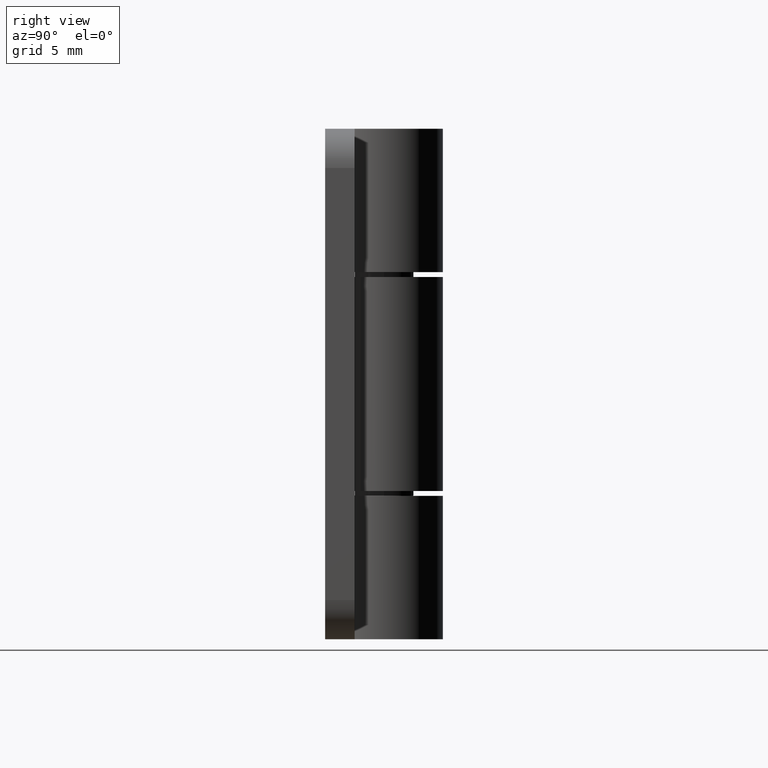
[diagram: clean part render]
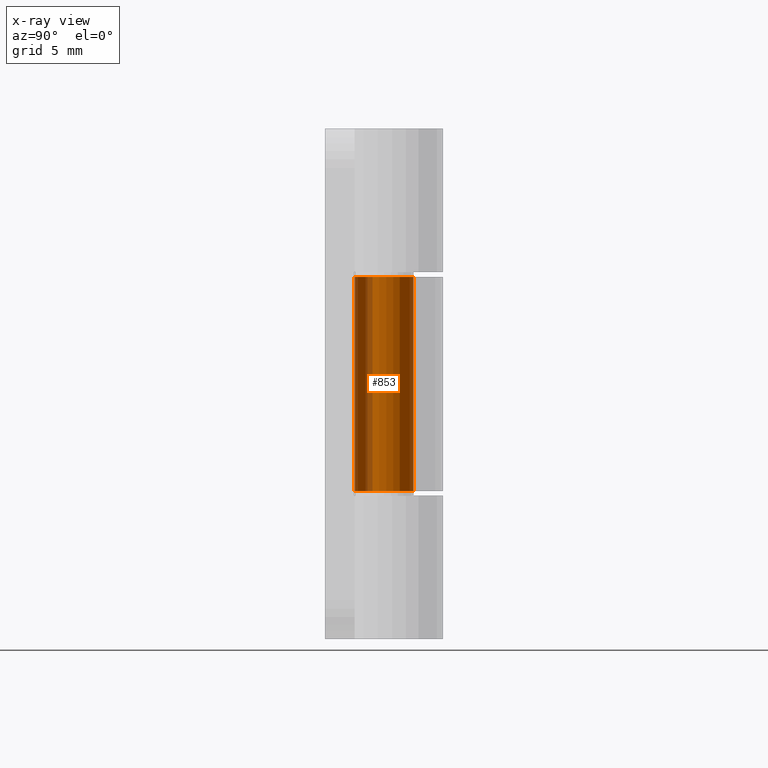
[diagram: x-ray — body ghosted, one internal face saturated and labeled with its STEP entity id]
A machine part, right view, then the same camera in x-ray: the body is ghosted and one INTERNAL B-rep face — a face not visible from any outside direction — is saturated and labeled: STEP entity #853.
In plain terms, the highlighted cylindrical surface (edge-blend (fillet) strip) has radius 1.5 mm, axis along (-0, -0, 1).
Its self-contained STEP definition (entity closure, byte-faithful):
#123=FACE_OUTER_BOUND('',#182,.T.);
#182=EDGE_LOOP('',(#749,#750,#751,#752));
#247=LINE('',#1397,#311);
#265=LINE('',#1456,#329);
#311=VECTOR('',#1126,10.9);
#329=VECTOR('',#1190,10.9);
#368=CIRCLE('',#937,1.5);
#371=CIRCLE('',#944,1.5);
#433=VERTEX_POINT('',#1394);
#434=VERTEX_POINT('',#1396);
#446=VERTEX_POINT('',#1430);
#450=VERTEX_POINT('',#1446);
#531=EDGE_CURVE('',#433,#434,#247,.T.);
#549=EDGE_CURVE('',#433,#446,#368,.T.);
#556=EDGE_CURVE('',#450,#434,#371,.T.);
#561=EDGE_CURVE('',#446,#450,#265,.T.);
#749=ORIENTED_EDGE('',*,*,#556,.T.);
#750=ORIENTED_EDGE('',*,*,#531,.F.);
#751=ORIENTED_EDGE('',*,*,#549,.T.);
#752=ORIENTED_EDGE('',*,*,#561,.T.);
#813=CYLINDRICAL_SURFACE('',#947,1.5);
#853=ADVANCED_FACE('',(#123),#813,.F.);
#937=AXIS2_PLACEMENT_3D('',#1432,#1161,#1162);
#944=AXIS2_PLACEMENT_3D('',#1447,#1179,#1180);
#947=AXIS2_PLACEMENT_3D('',#1455,#1188,#1189);
#1126=DIRECTION('',(0.,0.,1.));
#1161=DIRECTION('center_axis',(4.06112035344191E-16,7.51458220360844E-32,
-1.));
#1162=DIRECTION('ref_axis',(-0.916515138991168,0.4,-3.72207828519467E-16));
#1179=DIRECTION('center_axis',(-5.07640044180239E-16,-9.39322775451055E-32,
1.));
#1180=DIRECTION('ref_axis',(-0.916515138991168,0.4,-4.65259785649335E-16));
#1188=DIRECTION('center_axis',(0.,0.,1.));
#1189=DIRECTION('ref_axis',(-0.916515138991168,0.4,0.));
#1190=DIRECTION('',(0.,0.,1.));
#1394=CARTESIAN_POINT('',(3.67394039744206E-16,-1.5,-5.45));
#1396=CARTESIAN_POINT('',(3.67394039744206E-16,-1.5,5.45));
#1397=CARTESIAN_POINT('',(3.67394039744206E-16,-1.5,0.));
#1430=CARTESIAN_POINT('',(1.37477270848675,-0.6,-5.45));
#1432=CARTESIAN_POINT('Origin',(0.,0.,-5.45));
#1446=CARTESIAN_POINT('',(1.37477270848675,-0.6,5.45));
#1447=CARTESIAN_POINT('Origin',(0.,0.,5.45));
#1455=CARTESIAN_POINT('Origin',(0.,0.,0.));
#1456=CARTESIAN_POINT('',(1.37477270848675,-0.6,0.));